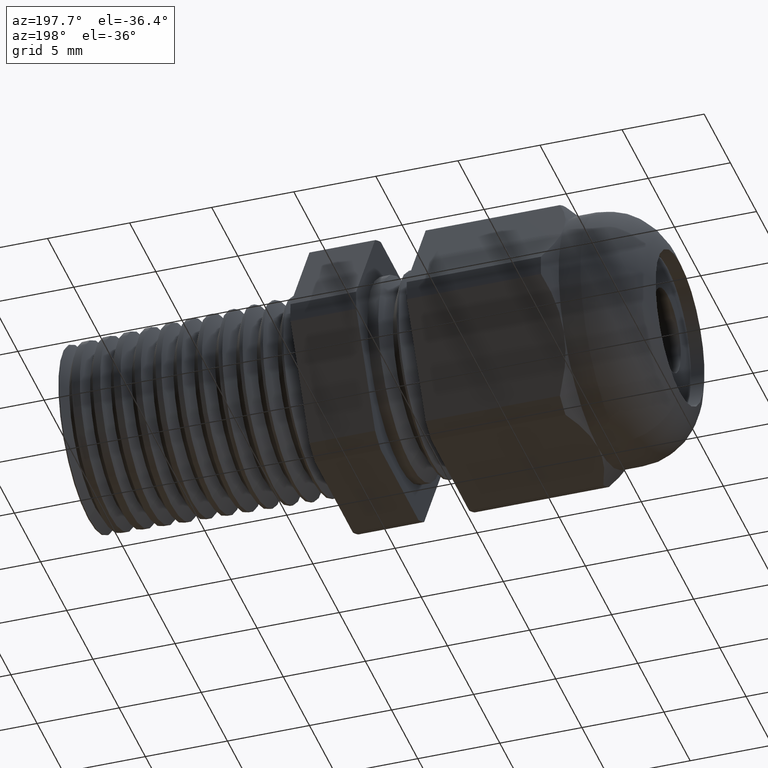
[diagram: clean part render]
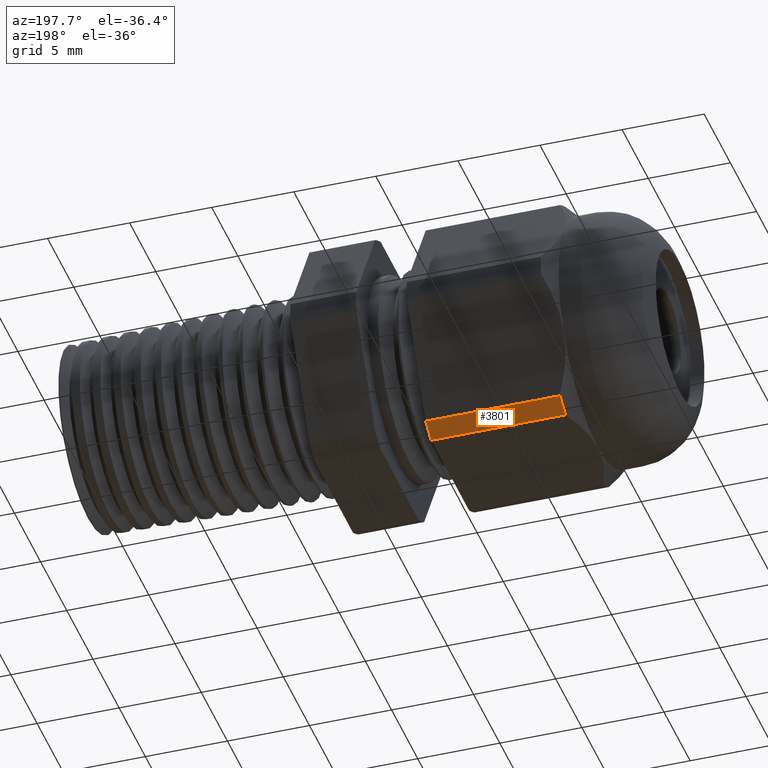
[diagram: same view with one face highlighted and labeled with its STEP entity id]
A machine part, auxiliary view. The second image highlights one B-rep face of the part: STEP entity #3801.
In plain terms, the highlighted cylindrical surface (partial cylindrical patch) has radius 8.3172 mm, axis along (-1, 0, 0).
Its self-contained STEP definition (entity closure, byte-faithful):
#20 = EDGE_CURVE ( 'NONE', #24, #21, #1204, .T. ) ;
#21 = VERTEX_POINT ( 'NONE', #1200 ) ;
#24 = VERTEX_POINT ( 'NONE', #1199 ) ;
#234 = EDGE_LOOP ( 'NONE', ( #3804, #3792, #3794, #3796 ) ) ;
#1199 = CARTESIAN_POINT ( 'NONE',  ( -0.5888188976377949400, 0.1844167762407786000, -0.2705807737829106800 ) ) ;
#1200 = CARTESIAN_POINT ( 'NONE',  ( -0.9106996062992123200, 0.1844167762407786000, -0.2705807737829106200 ) ) ;
#1201 = DIRECTION ( 'NONE',  ( -1.000000000000000000, 0.0000000000000000000, 0.0000000000000000000 ) ) ;
#1202 = VECTOR ( 'NONE', #1201, 39.37007874015748100 ) ;
#1203 = CARTESIAN_POINT ( 'NONE',  ( 0.2800000000000000300, 0.1844167762407786000, -0.2705807737829106800 ) ) ;
#1204 = LINE ( 'NONE', #1203, #1202 ) ;
#3406 = DIRECTION ( 'NONE',  ( 0.0000000000000000000, 0.0000000000000000000, -1.000000000000000000 ) ) ;
#3407 = DIRECTION ( 'NONE',  ( 1.000000000000000000, 0.0000000000000000000, 0.0000000000000000000 ) ) ;
#3408 = CARTESIAN_POINT ( 'NONE',  ( -0.9106996062992123200, 0.0000000000000000000, 0.0000000000000000000 ) ) ;
#3409 = AXIS2_PLACEMENT_3D ( 'NONE', #3408, #3407, #3406 ) ;
#3410 = CIRCLE ( 'NONE', #3409, 0.3274500000000000700 ) ;
#3411 = CARTESIAN_POINT ( 'NONE',  ( -0.5888188976377951600, 0.0000000000000000000, 0.0000000000000000000 ) ) ;
#3417 = CARTESIAN_POINT ( 'NONE',  ( -0.9106996062992123200, 0.1421214357512616300, -0.2950000000000001000 ) ) ;
#3449 = CARTESIAN_POINT ( 'NONE',  ( -0.5888188976377949400, 0.1421214357512616300, -0.2950000000000001000 ) ) ;
#3450 = DIRECTION ( 'NONE',  ( 0.0000000000000000000, 0.0000000000000000000, 1.000000000000000000 ) ) ;
#3451 = DIRECTION ( 'NONE',  ( -1.000000000000000000, 0.0000000000000000000, 0.0000000000000000000 ) ) ;
#3452 = CARTESIAN_POINT ( 'NONE',  ( 0.2800000000000000300, 0.0000000000000000000, 0.0000000000000000000 ) ) ;
#3453 = AXIS2_PLACEMENT_3D ( 'NONE', #3452, #3451, #3450 ) ;
#3454 = CYLINDRICAL_SURFACE ( 'NONE', #3453, 0.3274500000000000700 ) ;
#3455 = FACE_OUTER_BOUND ( 'NONE', #234, .T. ) ;
#3457 = DIRECTION ( 'NONE',  ( -1.000000000000000000, 0.0000000000000000000, 0.0000000000000000000 ) ) ;
#3458 = VECTOR ( 'NONE', #3457, 39.37007874015748100 ) ;
#3459 = CARTESIAN_POINT ( 'NONE',  ( 0.2800000000000000300, 0.1421214357512616300, -0.2950000000000001000 ) ) ;
#3460 = DIRECTION ( 'NONE',  ( 0.0000000000000000000, 0.0000000000000000000, -1.000000000000000000 ) ) ;
#3461 = DIRECTION ( 'NONE',  ( 1.000000000000000000, 0.0000000000000000000, 0.0000000000000000000 ) ) ;
#3462 = AXIS2_PLACEMENT_3D ( 'NONE', #3411, #3461, #3460 ) ;
#3463 = CIRCLE ( 'NONE', #3462, 0.3274500000000000700 ) ;
#3464 = LINE ( 'NONE', #3459, #3458 ) ;
#3792 = ORIENTED_EDGE ( 'NONE', *, *, #3795, .T. ) ;
#3793 = VERTEX_POINT ( 'NONE', #3417 ) ;
#3794 = ORIENTED_EDGE ( 'NONE', *, *, #20, .F. ) ;
#3795 = EDGE_CURVE ( 'NONE', #3793, #21, #3410, .T. ) ;
#3796 = ORIENTED_EDGE ( 'NONE', *, *, #3797, .F. ) ;
#3797 = EDGE_CURVE ( 'NONE', #3802, #24, #3463, .T. ) ;
#3799 = EDGE_CURVE ( 'NONE', #3802, #3793, #3464, .T. ) ;
#3801 = ADVANCED_FACE ( 'NONE', ( #3455 ), #3454, .T. ) ;
#3802 = VERTEX_POINT ( 'NONE', #3449 ) ;
#3804 = ORIENTED_EDGE ( 'NONE', *, *, #3799, .T. ) ;